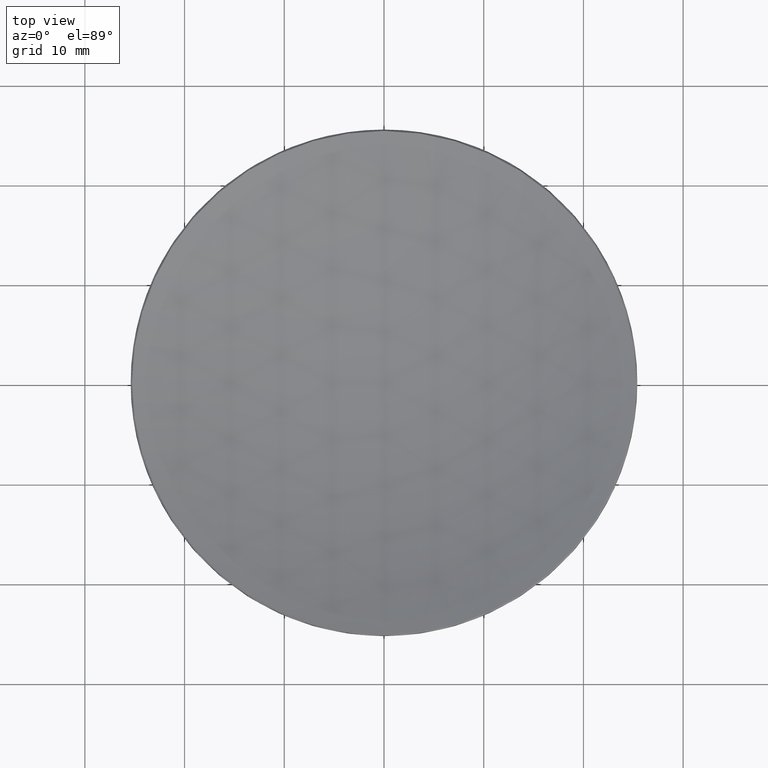
[diagram: clean part render]
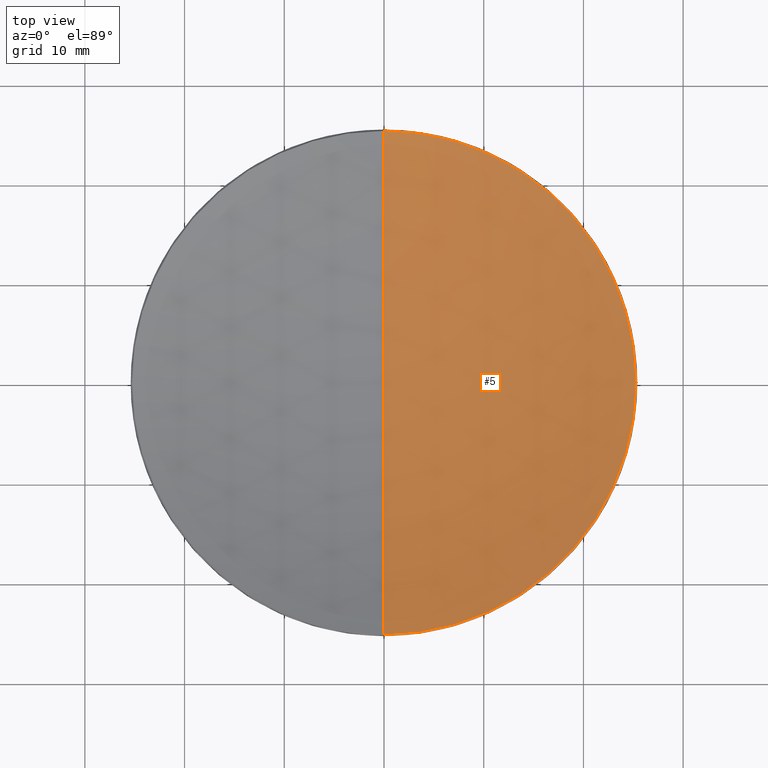
[diagram: same view with one face highlighted and labeled with its STEP entity id]
A machine part, top view. The second image highlights one B-rep face of the part: STEP entity #5.
In plain terms, the highlighted spherical surface has radius 65.8 mm.
Its self-contained STEP definition (entity closure, byte-faithful):
#5 = ADVANCED_FACE ( 'NONE', ( #29 ), #241, .F. ) ;
#6 = DIRECTION ( 'NONE',  ( -1.000000000000000000, 0.000000000000000000, 0.000000000000000000 ) ) ;
#16 = DIRECTION ( 'NONE',  ( 1.000000000000000000, 0.000000000000000000, 0.000000000000000000 ) ) ;
#29 = FACE_OUTER_BOUND ( 'NONE', #177, .T. ) ;
#37 = CARTESIAN_POINT ( 'NONE',  ( 25.25886542154865921, 3.101960869346804496E-15, 17.04113457845134860 ) ) ;
#38 = CARTESIAN_POINT ( 'NONE',  ( 0.000000000000000000, 0.000000000000000000, 17.04113457845134860 ) ) ;
#40 = ORIENTED_EDGE ( 'NONE', *, *, #71, .T. ) ;
#50 = CIRCLE ( 'NONE', #199, 65.79999999999999716 ) ;
#53 = VERTEX_POINT ( 'NONE', #164 ) ;
#64 = ORIENTED_EDGE ( 'NONE', *, *, #189, .T. ) ;
#71 = EDGE_CURVE ( 'NONE', #176, #264, #156, .T. ) ;
#92 = DIRECTION ( 'NONE',  ( 0.000000000000000000, 1.000000000000000000, 0.000000000000000000 ) ) ;
#96 = CARTESIAN_POINT ( 'NONE',  ( 0.000000000000000000, 0.000000000000000000, 77.79991762762121255 ) ) ;
#98 = DIRECTION ( 'NONE',  ( -1.224646799147353207E-16, -1.000000000000000000, 0.000000000000000000 ) ) ;
#116 = DIRECTION ( 'NONE',  ( 1.000000000000000000, 0.000000000000000000, 0.000000000000000000 ) ) ;
#120 = EDGE_CURVE ( 'NONE', #264, #53, #144, .T. ) ;
#135 = AXIS2_PLACEMENT_3D ( 'NONE', #38, #276, #16 ) ;
#144 = CIRCLE ( 'NONE', #135, 25.25886542154865921 ) ;
#149 = CARTESIAN_POINT ( 'NONE',  ( 0.000000000000000000, 4.029087969194792054E-15, 11.99991762762121716 ) ) ;
#156 = CIRCLE ( 'NONE', #267, 25.25886542154865921 ) ;
#164 = CARTESIAN_POINT ( 'NONE',  ( 0.000000000000000000, 25.25886542154867698, 17.04113457845135216 ) ) ;
#165 = DIRECTION ( 'NONE',  ( 1.000000000000000000, 0.000000000000000000, 0.000000000000000000 ) ) ;
#167 = DIRECTION ( 'NONE',  ( -1.000000000000000000, 1.224646799147353207E-16, 0.000000000000000000 ) ) ;
#171 = CARTESIAN_POINT ( 'NONE',  ( -3.093318868859335282E-15, -25.25886542154867698, 17.04113457845135216 ) ) ;
#176 = VERTEX_POINT ( 'NONE', #171 ) ;
#177 = EDGE_LOOP ( 'NONE', ( #190, #64, #40, #188 ) ) ;
#183 = CARTESIAN_POINT ( 'NONE',  ( 0.000000000000000000, 0.000000000000000000, 17.04113457845134860 ) ) ;
#188 = ORIENTED_EDGE ( 'NONE', *, *, #120, .T. ) ;
#189 = EDGE_CURVE ( 'NONE', #256, #176, #50, .T. ) ;
#190 = ORIENTED_EDGE ( 'NONE', *, *, #201, .F. ) ;
#199 = AXIS2_PLACEMENT_3D ( 'NONE', #231, #167, #98 ) ;
#201 = EDGE_CURVE ( 'NONE', #256, #53, #246, .T. ) ;
#215 = AXIS2_PLACEMENT_3D ( 'NONE', #96, #165, #244 ) ;
#218 = AXIS2_PLACEMENT_3D ( 'NONE', #269, #6, #92 ) ;
#224 = DIRECTION ( 'NONE',  ( -0.000000000000000000, -0.000000000000000000, 1.000000000000000000 ) ) ;
#231 = CARTESIAN_POINT ( 'NONE',  ( 0.000000000000000000, 0.000000000000000000, 77.79991762762121255 ) ) ;
#241 = SPHERICAL_SURFACE ( 'NONE', #218, 65.79999999999999716 ) ;
#244 = DIRECTION ( 'NONE',  ( 0.000000000000000000, 0.000000000000000000, -1.000000000000000000 ) ) ;
#246 = CIRCLE ( 'NONE', #215, 65.79999999999999716 ) ;
#256 = VERTEX_POINT ( 'NONE', #149 ) ;
#264 = VERTEX_POINT ( 'NONE', #37 ) ;
#267 = AXIS2_PLACEMENT_3D ( 'NONE', #183, #224, #116 ) ;
#269 = CARTESIAN_POINT ( 'NONE',  ( 0.000000000000000000, 0.000000000000000000, 77.79991762762121255 ) ) ;
#276 = DIRECTION ( 'NONE',  ( -0.000000000000000000, -0.000000000000000000, 1.000000000000000000 ) ) ;